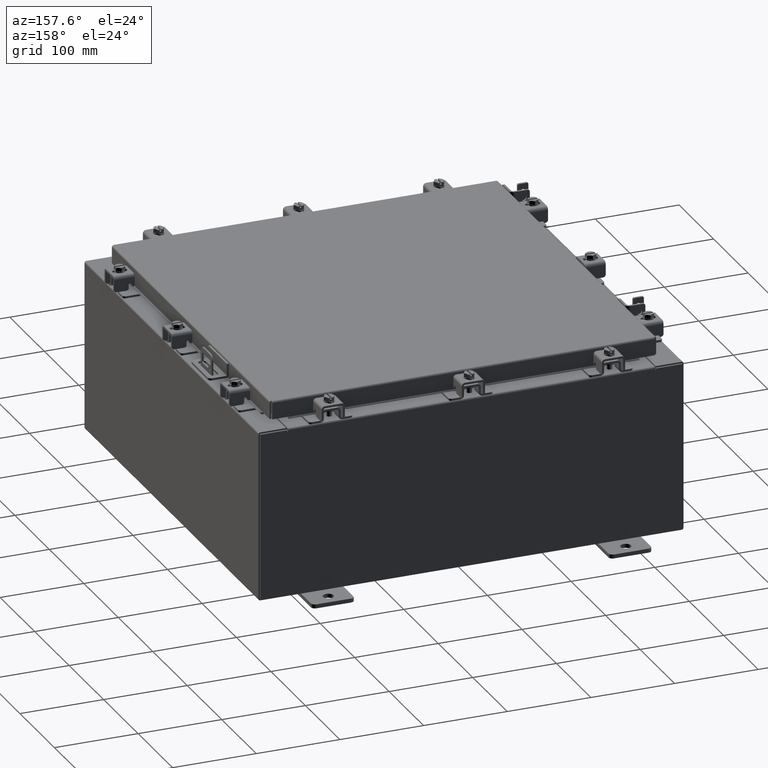
[diagram: clean part render]
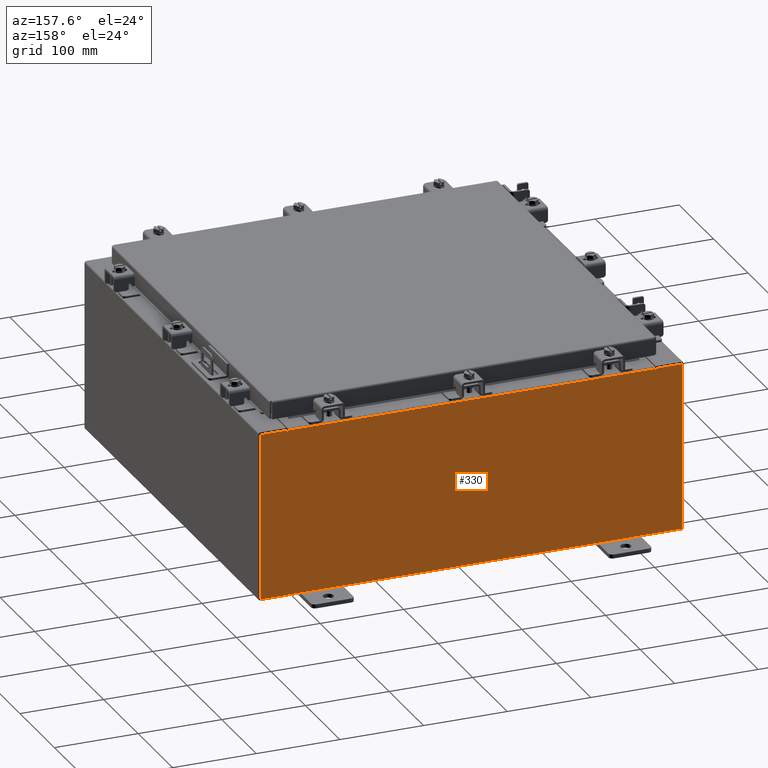
[diagram: same view with one face highlighted and labeled with its STEP entity id]
A machine part, auxiliary view. The second image highlights one B-rep face of the part: STEP entity #330.
In plain terms, the highlighted planar face has unit normal (0, -1, 0).
Its self-contained STEP definition (entity closure, byte-faithful):
#330 = ADVANCED_FACE ( 'NONE', ( #11647 ), #13872, .F. ) ;
#474 = CARTESIAN_POINT ( 'NONE',  ( 8.637200000000000000, 0.0000000000000000000, 0.0000000000000000000 ) ) ;
#588 = CARTESIAN_POINT ( 'NONE',  ( -9.925300000000000000, 0.0000000000000000000, 3.925299999999999600 ) ) ;
#1995 = VECTOR ( 'NONE', #10085, 39.37007874015748100 ) ;
#2040 = DIRECTION ( 'NONE',  ( -6.510859170600007400E-014, 0.0000000000000000000, -1.000000000000000000 ) ) ;
#2061 = CARTESIAN_POINT ( 'NONE',  ( -8.637199999999996400, 1.024442997624098700E-016, 3.912299999999999700 ) ) ;
#2195 = CARTESIAN_POINT ( 'NONE',  ( 8.655875000000000000, 0.0000000000000000000, 3.874949999999999700 ) ) ;
#2255 = DIRECTION ( 'NONE',  ( 1.000000000000000000, 0.0000000000000000000, 0.0000000000000000000 ) ) ;
#2446 = DIRECTION ( 'NONE',  ( 0.0000000000000000000, 0.0000000000000000000, -1.000000000000000000 ) ) ;
#2585 = EDGE_CURVE ( 'NONE', #11354, #19003, #9939, .T. ) ;
#2671 = DIRECTION ( 'NONE',  ( 0.0000000000000000000, 0.0000000000000000000, 1.000000000000000000 ) ) ;
#2719 = CARTESIAN_POINT ( 'NONE',  ( -8.637199999999996400, -0.0000000000000000000, 3.874949999999999700 ) ) ;
#3527 = ORIENTED_EDGE ( 'NONE', *, *, #9144, .T. ) ;
#3809 = VECTOR ( 'NONE', #12660, 39.37007874015748100 ) ;
#3832 = VECTOR ( 'NONE', #19417, 39.37007874015748100 ) ;
#3931 = VECTOR ( 'NONE', #5759, 39.37007874015748100 ) ;
#3951 = DIRECTION ( 'NONE',  ( 0.0000000000000000000, 0.0000000000000000000, -1.000000000000000000 ) ) ;
#4279 = ORIENTED_EDGE ( 'NONE', *, *, #8083, .T. ) ;
#4378 = CARTESIAN_POINT ( 'NONE',  ( -8.674549999999996400, 0.0000000000000000000, 3.874949999999999700 ) ) ;
#4500 = EDGE_CURVE ( 'NONE', #10194, #19928, #7868, .T. ) ;
#4880 = CARTESIAN_POINT ( 'NONE',  ( -8.637200000000000000, 1.024442997624098700E-016, 3.912299999999999700 ) ) ;
#5497 = ORIENTED_EDGE ( 'NONE', *, *, #18508, .T. ) ;
#5759 = DIRECTION ( 'NONE',  ( 0.0000000000000000000, 0.0000000000000000000, -1.000000000000000000 ) ) ;
#6112 = LINE ( 'NONE', #12457, #7753 ) ;
#6361 = CARTESIAN_POINT ( 'NONE',  ( 8.674550000000001800, 0.0000000000000000000, 3.925299999999999600 ) ) ;
#6371 = CIRCLE ( 'NONE', #13526, 0.01867500000000003900 ) ;
#6730 = ORIENTED_EDGE ( 'NONE', *, *, #2585, .T. ) ;
#6819 = CARTESIAN_POINT ( 'NONE',  ( 8.637200000000000000, 0.0000000000000000000, 3.874949999999999700 ) ) ;
#7071 = ORIENTED_EDGE ( 'NONE', *, *, #8097, .F. ) ;
#7365 = ORIENTED_EDGE ( 'NONE', *, *, #21688, .T. ) ;
#7387 = CARTESIAN_POINT ( 'NONE',  ( -9.925300000000000000, 0.0000000000000000000, -3.925299999999999600 ) ) ;
#7753 = VECTOR ( 'NONE', #2040, 39.37007874015748100 ) ;
#7868 = LINE ( 'NONE', #14901, #17184 ) ;
#7989 = EDGE_CURVE ( 'NONE', #13207, #16016, #6112, .T. ) ;
#8083 = EDGE_CURVE ( 'NONE', #13207, #16403, #18964, .T. ) ;
#8097 = EDGE_CURVE ( 'NONE', #11354, #12422, #13202, .T. ) ;
#8358 = CARTESIAN_POINT ( 'NONE',  ( -9.925300000000000000, 0.0000000000000000000, -3.925299999999999600 ) ) ;
#8832 = EDGE_CURVE ( 'NONE', #11414, #19928, #16205, .T. ) ;
#8864 = CARTESIAN_POINT ( 'NONE',  ( 9.925300000000000000, 0.0000000000000000000, 3.925299999999999600 ) ) ;
#8876 = EDGE_CURVE ( 'NONE', #12422, #10194, #6371, .T. ) ;
#9017 = LINE ( 'NONE', #19327, #3832 ) ;
#9114 = VECTOR ( 'NONE', #2255, 39.37007874015748100 ) ;
#9144 = EDGE_CURVE ( 'NONE', #11206, #19492, #12342, .T. ) ;
#9470 = DIRECTION ( 'NONE',  ( -0.0000000000000000000, 1.000000000000000000, -0.0000000000000000000 ) ) ;
#9519 = LINE ( 'NONE', #474, #3809 ) ;
#9939 = LINE ( 'NONE', #4880, #14595 ) ;
#10085 = DIRECTION ( 'NONE',  ( -1.000000000000000000, -0.0000000000000000000, -0.0000000000000000000 ) ) ;
#10194 = VERTEX_POINT ( 'NONE', #4378 ) ;
#10673 = CIRCLE ( 'NONE', #22202, 0.01867500000000003900 ) ;
#10818 = ORIENTED_EDGE ( 'NONE', *, *, #8876, .F. ) ;
#10926 = CARTESIAN_POINT ( 'NONE',  ( -8.637199999999996400, -0.0000000000000000000, 0.0000000000000000000 ) ) ;
#11206 = VERTEX_POINT ( 'NONE', #20603 ) ;
#11354 = VERTEX_POINT ( 'NONE', #2061 ) ;
#11414 = VERTEX_POINT ( 'NONE', #12639 ) ;
#11576 = ORIENTED_EDGE ( 'NONE', *, *, #4500, .F. ) ;
#11647 = FACE_OUTER_BOUND ( 'NONE', #21838, .T. ) ;
#11825 = LINE ( 'NONE', #12897, #15972 ) ;
#11850 = CARTESIAN_POINT ( 'NONE',  ( -8.674549999999996400, 0.0000000000000000000, 3.925299999999999600 ) ) ;
#12086 = VECTOR ( 'NONE', #14545, 39.37007874015748100 ) ;
#12342 = LINE ( 'NONE', #8358, #1995 ) ;
#12422 = VERTEX_POINT ( 'NONE', #2719 ) ;
#12457 = CARTESIAN_POINT ( 'NONE',  ( 8.674549999999747700, -0.0000000000000000000, -5.647877341832665300E-013 ) ) ;
#12639 = CARTESIAN_POINT ( 'NONE',  ( -9.925300000000000000, 0.0000000000000000000, 3.925299999999999600 ) ) ;
#12660 = DIRECTION ( 'NONE',  ( 0.0000000000000000000, 0.0000000000000000000, 1.000000000000000000 ) ) ;
#12897 = CARTESIAN_POINT ( 'NONE',  ( 9.925300000000000000, 0.0000000000000000000, 3.925299999999999600 ) ) ;
#13128 = CARTESIAN_POINT ( 'NONE',  ( 8.674550000000000000, 0.0000000000000000000, 3.874949999999999700 ) ) ;
#13146 = ORIENTED_EDGE ( 'NONE', *, *, #8832, .T. ) ;
#13202 = LINE ( 'NONE', #10926, #3931 ) ;
#13207 = VERTEX_POINT ( 'NONE', #6361 ) ;
#13363 = VERTEX_POINT ( 'NONE', #6819 ) ;
#13519 = DIRECTION ( 'NONE',  ( 0.0000000000000000000, -0.0000000000000000000, -1.000000000000000000 ) ) ;
#13526 = AXIS2_PLACEMENT_3D ( 'NONE', #19935, #9470, #21677 ) ;
#13573 = DIRECTION ( 'NONE',  ( 1.000000000000000000, 0.0000000000000000000, 0.0000000000000000000 ) ) ;
#13595 = DIRECTION ( 'NONE',  ( 0.0000000000000000000, -1.000000000000000000, 0.0000000000000000000 ) ) ;
#13847 = CARTESIAN_POINT ( 'NONE',  ( 0.0000000000000000000, 0.0000000000000000000, 0.0000000000000000000 ) ) ;
#13872 = PLANE ( 'NONE',  #19713 ) ;
#14402 = DIRECTION ( 'NONE',  ( -0.0000000000000000000, 1.000000000000000000, -0.0000000000000000000 ) ) ;
#14471 = CARTESIAN_POINT ( 'NONE',  ( -9.925300000000000000, 0.0000000000000000000, 3.925299999999999600 ) ) ;
#14545 = DIRECTION ( 'NONE',  ( 1.000000000000000000, 0.0000000000000000000, 0.0000000000000000000 ) ) ;
#14595 = VECTOR ( 'NONE', #13573, 39.37007874015748100 ) ;
#14901 = CARTESIAN_POINT ( 'NONE',  ( -8.674549999999996400, -0.0000000000000000000, 0.0000000000000000000 ) ) ;
#15291 = ORIENTED_EDGE ( 'NONE', *, *, #22178, .F. ) ;
#15972 = VECTOR ( 'NONE', #2446, 39.37007874015748100 ) ;
#16016 = VERTEX_POINT ( 'NONE', #13128 ) ;
#16205 = LINE ( 'NONE', #588, #12086 ) ;
#16403 = VERTEX_POINT ( 'NONE', #8864 ) ;
#16498 = CARTESIAN_POINT ( 'NONE',  ( 8.637200000000000000, 0.0000000000000000000, 3.912299999999999700 ) ) ;
#17184 = VECTOR ( 'NONE', #2671, 39.37007874015748100 ) ;
#18508 = EDGE_CURVE ( 'NONE', #16403, #11206, #11825, .T. ) ;
#18964 = LINE ( 'NONE', #14471, #9114 ) ;
#19003 = VERTEX_POINT ( 'NONE', #16498 ) ;
#19327 = CARTESIAN_POINT ( 'NONE',  ( -9.925300000000000000, 0.0000000000000000000, 3.925299999999999600 ) ) ;
#19417 = DIRECTION ( 'NONE',  ( -0.0000000000000000000, -0.0000000000000000000, 1.000000000000000000 ) ) ;
#19467 = ORIENTED_EDGE ( 'NONE', *, *, #7989, .F. ) ;
#19492 = VERTEX_POINT ( 'NONE', #7387 ) ;
#19713 = AXIS2_PLACEMENT_3D ( 'NONE', #13847, #13595, #13519 ) ;
#19928 = VERTEX_POINT ( 'NONE', #11850 ) ;
#19935 = CARTESIAN_POINT ( 'NONE',  ( -8.655874999999996400, 0.0000000000000000000, 3.874949999999999700 ) ) ;
#20603 = CARTESIAN_POINT ( 'NONE',  ( 9.925300000000000000, 0.0000000000000000000, -3.925299999999999600 ) ) ;
#20993 = EDGE_CURVE ( 'NONE', #16016, #13363, #10673, .T. ) ;
#21677 = DIRECTION ( 'NONE',  ( 0.0000000000000000000, 0.0000000000000000000, -1.000000000000000000 ) ) ;
#21688 = EDGE_CURVE ( 'NONE', #19492, #11414, #9017, .T. ) ;
#21838 = EDGE_LOOP ( 'NONE', ( #11576, #10818, #7071, #6730, #15291, #21889, #19467, #4279, #5497, #3527, #7365, #13146 ) ) ;
#21889 = ORIENTED_EDGE ( 'NONE', *, *, #20993, .F. ) ;
#22178 = EDGE_CURVE ( 'NONE', #13363, #19003, #9519, .T. ) ;
#22202 = AXIS2_PLACEMENT_3D ( 'NONE', #2195, #14402, #3951 ) ;